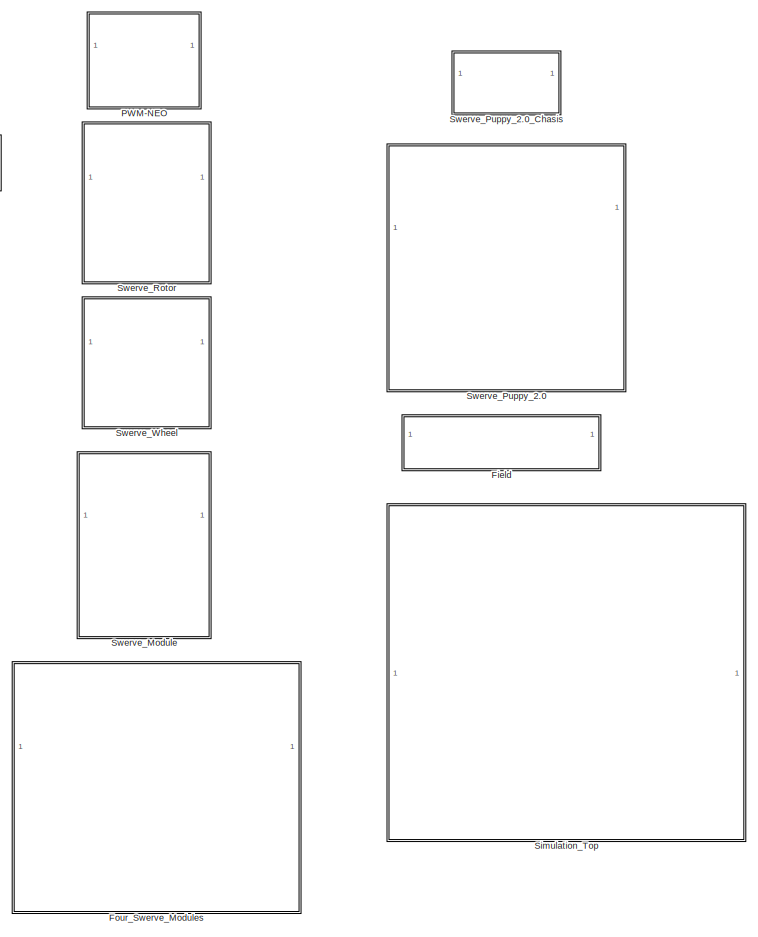
[diagram: root canvas - part 1/2, right side, full height]
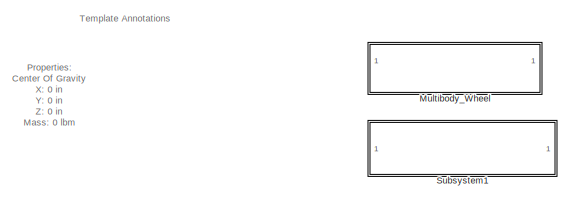
[diagram: root canvas - part 2/2, top left region]
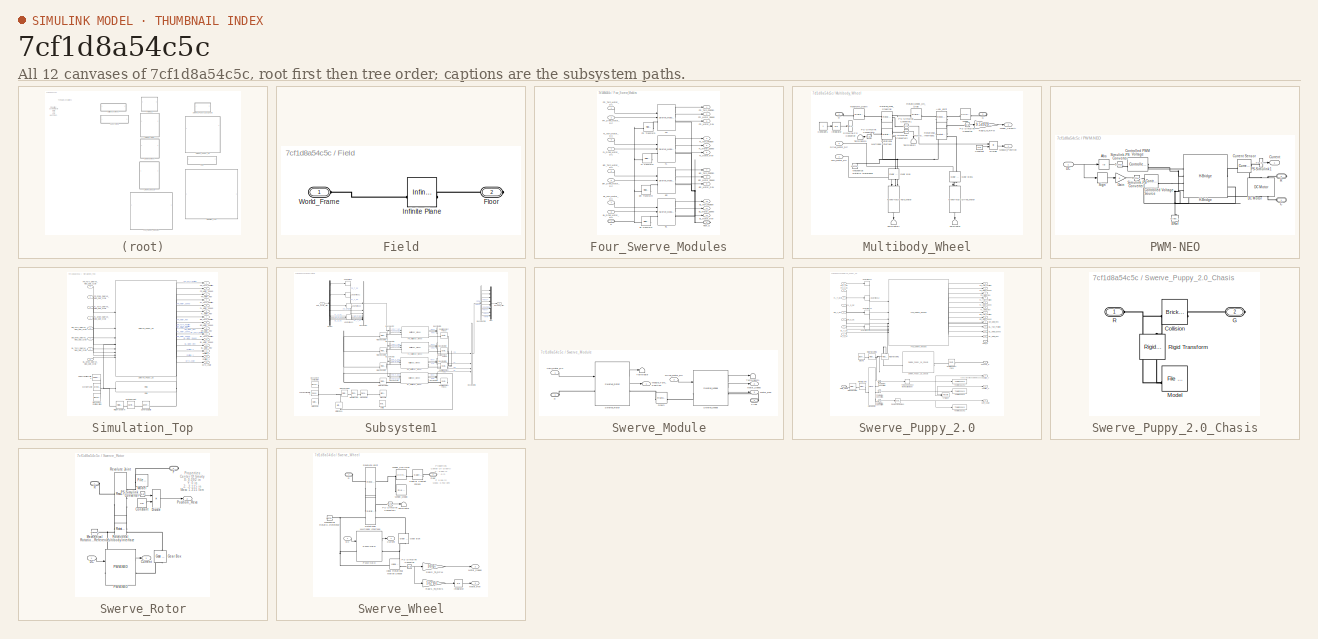
[diagram: thumbnail index - all 12 canvases of the model, root first then tree order]
MODEL slx_7cf1d8a54c5c
KIND library
CONFIG AbsTol = auto
CONFIG EnableMultiTasking = off
CONFIG FixedStep = auto
CONFIG MaxStep = auto
CONFIG MinStep = auto
CONFIG RelTol = 1e-3
CONFIG SampleTimeConstraint = Unconstrained
CONFIG SolverName = VariableStepAuto
CONFIG StartTime = 0.0
CONFIG StopTime = 10.0
BLOCK [SubSystem] Field
BLOCK [PMIOPort] Field/Floor
  Port = 2
  Side = Right
BLOCK [Reference] Field/Infinite Plane  REF=sm_lib/Curves and Surfaces/Infinite Plane
  SourceBlock = sm_lib/Curves and Surfaces/Infinite Plane
  SourceType = Infinite Plane
BLOCK [PMIOPort] Field/World_Frame
  Side = Left
BLOCK [SubSystem] Four_Swerve_Modules
BLOCK [Reference] Four_Swerve_Modules/BL  REF=$bdroot/Swerve_Module
  SourceBlock = $bdroot/Swerve_Module
BLOCK [Reference] Four_Swerve_Modules/BL Transform  REF=sm_lib/Frames and
Transforms/Rigid
Transform
  SourceBlock = sm_lib/Frames and\nTransforms/Rigid\nTransform
  SourceType = Rigid\nTransform
BLOCK [Inport] Four_Swerve_Modules/BL_Drive_Motor_DC
  Port = 8
BLOCK [Outport] Four_Swerve_Modules/BL_Motor_Rev
  Port = 12
  Unit = rev
BLOCK [Outport] Four_Swerve_Modules/BL_Motor_Speed
  Port = 11
BLOCK [Inport] Four_Swerve_Modules/BL_Turn_Motor_DC
  Port = 7
BLOCK [Outport] Four_Swerve_Modules/BL_Turn_Position
  Port = 10
BLOCK [Reference] Four_Swerve_Modules/BR  REF=$bdroot/Swerve_Module
  SourceBlock = $bdroot/Swerve_Module
BLOCK [Reference] Four_Swerve_Modules/BR Transform  REF=sm_lib/Frames and
Transforms/Rigid
Transform
  SourceBlock = sm_lib/Frames and\nTransforms/Rigid\nTransform
  SourceType = Rigid\nTransform
BLOCK [Inport] Four_Swerve_Modules/BR_Drive_Motor_DC
  Port = 6
BLOCK [Outport] Four_Swerve_Modules/BR_Motor_Rev
  Port = 9
  Unit = rev
BLOCK [Outport] Four_Swerve_Modules/BR_Motor_Speed
  Port = 8
BLOCK [Inport] Four_Swerve_Modules/BR_Turn_Motor_DC
  Port = 5
BLOCK [Outport] Four_Swerve_Modules/BR_Turn_Position
  Port = 7
BLOCK [Reference] Four_Swerve_Modules/FL  REF=$bdroot/Swerve_Module
  SourceBlock = $bdroot/Swerve_Module
BLOCK [Reference] Four_Swerve_Modules/FL Transform  REF=sm_lib/Frames and
Transforms/Rigid
Transform
  SourceBlock = sm_lib/Frames and\nTransforms/Rigid\nTransform
  SourceType = Rigid\nTransform
BLOCK [Inport] Four_Swerve_Modules/FL_Drive_Motor_DC
  Port = 4
BLOCK [Outport] Four_Swerve_Modules/FL_Motor_Rev
  Port = 6
  Unit = rev
BLOCK [Outport] Four_Swerve_Modules/FL_Motor_Speed
  Port = 5
BLOCK [Inport] Four_Swerve_Modules/FL_Turn_Motor_DC
  Port = 3
BLOCK [Outport] Four_Swerve_Modules/FL_Turn_Position
  Port = 4
BLOCK [Reference] Four_Swerve_Modules/FR  REF=$bdroot/Swerve_Module
  SourceBlock = $bdroot/Swerve_Module
BLOCK [Reference] Four_Swerve_Modules/FR Transform  REF=sm_lib/Frames and
Transforms/Rigid
Transform
  SourceBlock = sm_lib/Frames and\nTransforms/Rigid\nTransform
  SourceType = Rigid\nTransform
BLOCK [Inport] Four_Swerve_Modules/FR_Drive_Motor_DC
  Port = 2
BLOCK [Outport] Four_Swerve_Modules/FR_Motor_Rev
  Port = 3
  Unit = rev
BLOCK [Outport] Four_Swerve_Modules/FR_Motor_Speed
  Port = 2
BLOCK [Inport] Four_Swerve_Modules/FR_Turn_Motor_DC
BLOCK [Outport] Four_Swerve_Modules/FR_Turn_Position
BLOCK [PMIOPort] Four_Swerve_Modules/Floor_G
  Port = 2
  Side = Right
BLOCK [PMIOPort] Four_Swerve_Modules/R
  Side = Left
BLOCK [SubSystem] Multibody_Wheel
BLOCK [Reference] Multibody_Wheel/Axel_Joint  REF=sm_lib/Joints/Revolute Joint
  NameLocation = top
  SourceBlock = sm_lib/Joints/Revolute Joint
  SourceType = Revolute Joint
BLOCK [Constant] Multibody_Wheel/Constant
  Value = 2*pi
BLOCK [Constant] Multibody_Wheel/Constant1
BLOCK [Product] Multibody_Wheel/Divide
  Inputs = */
BLOCK [Reference] Multibody_Wheel/Drive_Motor  REF=$bdroot/PWM-NEO
  NameLocation = left
  SourceBlock = $bdroot/PWM-NEO
BLOCK [Inport] Multibody_Wheel/Drive_Motor_DC
  Port = 2
BLOCK [PMIOPort] Multibody_Wheel/G
  Port = 2
  Side = Right
BLOCK [Reference] Multibody_Wheel/Gear Box  REF=fl_lib/Mechanical/Mechanisms/Gear Box
  NameLocation = right
  SourceBlock = fl_lib/Mechanical/Mechanisms/Gear Box
  SourceType = Gear Box
BLOCK [Reference] Multibody_Wheel/Gear Box1  REF=fl_lib/Mechanical/Mechanisms/Gear Box
  NameLocation = right
  SourceBlock = fl_lib/Mechanical/Mechanisms/Gear Box
  SourceType = Gear Box
BLOCK [Integrator] Multibody_Wheel/Integrator
BLOCK [Reference] Multibody_Wheel/Mechanical Rotational Reference  REF=fl_lib/Mechanical/Rotational Elements/Mechanical
Rotational Reference
  NameLocation = right
  SourceBlock = fl_lib/Mechanical/Rotational Elements/Mechanical\nRotational Reference
  SourceType = Mechanical\nRotational Reference
BLOCK [Outport] Multibody_Wheel/Module_Position
BLOCK [Reference] Multibody_Wheel/PS-Simulink Converter  REF=nesl_utility/PS-Simulink
Converter
  SourceBlock = nesl_utility/PS-Simulink\nConverter
  SourceType = PS-Simulink\nConverter
BLOCK [Reference] Multibody_Wheel/PS-Simulink Converter1  REF=nesl_utility/PS-Simulink
Converter
  SourceBlock = nesl_utility/PS-Simulink\nConverter
  SourceType = PS-Simulink\nConverter
BLOCK [Reference] Multibody_Wheel/PS-Simulink Converter2  REF=nesl_utility/PS-Simulink
Converter
  SourceBlock = nesl_utility/PS-Simulink\nConverter
  SourceType = PS-Simulink\nConverter
BLOCK [Reference] Multibody_Wheel/PS-Simulink Converter3  REF=nesl_utility/PS-Simulink
Converter
  NameLocation = top
  SourceBlock = nesl_utility/PS-Simulink\nConverter
  SourceType = PS-Simulink\nConverter
BLOCK [PMIOPort] Multibody_Wheel/R
  Side = Left
BLOCK [Gain] Multibody_Wheel/Rad//s_to_RPM
  Gain = 9.5492968
BLOCK [Reference] Multibody_Wheel/Rotate_Wheel_On_Side  REF=sm_lib/Frames and
Transforms/Rigid
Transform
  NameLocation = top
  SourceBlock = sm_lib/Frames and\nTransforms/Rigid\nTransform
  SourceType = Rigid\nTransform
BLOCK [Reference] Multibody_Wheel/Rotational Multibody Interface  REF=fl_lib/Mechanical/Multibody Interfaces/Rotational Multibody
Interface
  SourceBlock = fl_lib/Mechanical/Multibody Interfaces/Rotational Multibody\nInterface
  SourceType = Rotational Multibody\nInterface
BLOCK [Reference] Multibody_Wheel/Rotational Multibody Interface1  REF=fl_lib/Mechanical/Multibody Interfaces/Rotational Multibody
Interface
  SourceBlock = fl_lib/Mechanical/Multibody Interfaces/Rotational Multibody\nInterface
  SourceType = Rotational Multibody\nInterface
BLOCK [Reference] Multibody_Wheel/Simulink-PS Converter  REF=nesl_utility/Simulink-PS
Converter
  SourceBlock = nesl_utility/Simulink-PS\nConverter
  SourceType = Simulink-PS\nConverter
BLOCK [Reference] Multibody_Wheel/Swerve_Mod_Steering  REF=sm_lib/Joints/Revolute Joint
  NameLocation = top
  SourceBlock = sm_lib/Joints/Revolute Joint
  SourceType = Revolute Joint
BLOCK [Terminator] Multibody_Wheel/Terminator
  NameLocation = left
BLOCK [Terminator] Multibody_Wheel/Terminator1
  NameLocation = left
BLOCK [Terminator] Multibody_Wheel/Terminator2
  NameLocation = left
BLOCK [Terminator] Multibody_Wheel/Terminator3
  NameLocation = top
BLOCK [Reference] Multibody_Wheel/Transform_Down  REF=sm_lib/Frames and
Transforms/Rigid
Transform
  SourceBlock = sm_lib/Frames and\nTransforms/Rigid\nTransform
  SourceType = Rigid\nTransform
BLOCK [Reference] Multibody_Wheel/Turn_Motor  REF=$bdroot/PWM-NEO
  NameLocation = left
  SourceBlock = $bdroot/PWM-NEO
BLOCK [Inport] Multibody_Wheel/Turn_Motor_DC
BLOCK [Reference] Multibody_Wheel/Wheel  REF=sm_lib/Body Elements/Cylindrical Solid
  NameLocation = top
  SourceBlock = sm_lib/Body Elements/Cylindrical Solid
  SourceType = Cylindrical Solid
BLOCK [Outport] Multibody_Wheel/Wheel_Velocity
  Port = 2
BLOCK [SubSystem] PWM-NEO
BLOCK [Abs] PWM-NEO/Abs
  SaturateOnIntegerOverflow = off
BLOCK [PMIOPort] PWM-NEO/C
  Side = Left
BLOCK [Reference] PWM-NEO/Controlled PWM Voltage  REF=ee_lib/Integrated Circuits/Controlled PWM
Voltage
  NameLocation = top
  SourceBlock = ee_lib/Integrated Circuits/Controlled PWM\nVoltage
  SourceType = Controlled PWM\nVoltage
BLOCK [Reference] PWM-NEO/Controlled Voltage Source  REF=fl_lib/Electrical/Electrical Sources/Controlled Voltage
Source
  SourceBlock = fl_lib/Electrical/Electrical Sources/Controlled Voltage\nSource
  SourceType = Controlled Voltage\nSource
BLOCK [Outport] PWM-NEO/Current
BLOCK [Reference] PWM-NEO/Current Sensor  REF=fl_lib/Electrical/Electrical Sensors/Current Sensor
  SourceBlock = fl_lib/Electrical/Electrical Sensors/Current Sensor
  SourceType = Current Sensor
BLOCK [Inport] PWM-NEO/DC
BLOCK [Reference] PWM-NEO/DC Motor  REF=ee_lib/Electromechanical/Brushed Motors/DC Motor
  NameLocation = right
  SourceBlock = ee_lib/Electromechanical/Brushed Motors/DC Motor
  SourceType = DC Motor
BLOCK [Reference] PWM-NEO/ERef  REF=fl_lib/Electrical/Electrical Elements/Electrical Reference
  NameLocation = left
  SourceBlock = fl_lib/Electrical/Electrical Elements/Electrical Reference
  SourceType = Electrical Reference
BLOCK [Gain] PWM-NEO/Gain
  Gain = 5
BLOCK [Reference] PWM-NEO/H-Bridge  REF=ee_lib/Semiconductors &
Converters/Converters/H-Bridge
  NameLocation = top
  SourceBlock = ee_lib/Semiconductors &\nConverters/Converters/H-Bridge
  SourceType = H-Bridge
BLOCK [Reference] PWM-NEO/PS-Simulink1  REF=nesl_utility/PS-Simulink
Converter
  SourceBlock = nesl_utility/PS-Simulink\nConverter
  SourceType = PS-Simulink\nConverter
BLOCK [PMIOPort] PWM-NEO/R
  Port = 2
  Side = Right
BLOCK [Signum] PWM-NEO/Sign
BLOCK [Reference] PWM-NEO/Simulink-PS Converter  REF=nesl_utility/Simulink-PS
Converter
  SourceBlock = nesl_utility/Simulink-PS\nConverter
  SourceType = Simulink-PS\nConverter
BLOCK [Reference] PWM-NEO/Simulink-PS Converter1  REF=nesl_utility/Simulink-PS
Converter
  SourceBlock = nesl_utility/Simulink-PS\nConverter
  SourceType = Simulink-PS\nConverter
BLOCK [SubSystem] Simulation_Top
BLOCK [Inport] Simulation_Top/BL_Drive_Swerve_Mod_Duty_Cycle
  Port = 5
BLOCK [Outport] Simulation_Top/BL_Motor_Rev
  Port = 12
BLOCK [Outport] Simulation_Top/BL_Motor_Speed
  Port = 11
BLOCK [Outport] Simulation_Top/BL_Turn_Position
  Port = 10
BLOCK [Inport] Simulation_Top/BL_Turn_Swerve_Mod_Duty_Cycle
  Port = 6
BLOCK [Inport] Simulation_Top/BR_Drive_Swerve_Mod_Duty_Cycle
  Port = 7
BLOCK [Outport] Simulation_Top/BR_Motor_Rev
  Port = 9
BLOCK [Outport] Simulation_Top/BR_Motor_Speed
  Port = 8
BLOCK [Outport] Simulation_Top/BR_Turn_Position
  Port = 7
BLOCK [Inport] Simulation_Top/BR_Turn_Swerve_Mod_Duty_Cycle
  Port = 8
BLOCK [Reference] Simulation_Top/Cartesian Joint  REF=sm_lib/Joints/Cartesian
Joint
  SourceBlock = sm_lib/Joints/Cartesian\nJoint
  SourceType = Cartesian\nJoint
BLOCK [Inport] Simulation_Top/FL_Drive_Swerve_Mod_Duty_Cycle
BLOCK [Outport] Simulation_Top/FL_Motor_Rev
  Port = 6
BLOCK [Outport] Simulation_Top/FL_Motor_Speed
  Port = 5
BLOCK [Outport] Simulation_Top/FL_Turn_Position
  Port = 4
BLOCK [Inport] Simulation_Top/FL_Turn_Swerve_Mod_Duty_Cycle
  Port = 2
BLOCK [Inport] Simulation_Top/FR_Drive_Swerve_Mod_Duty_Cycle
  Port = 3
BLOCK [Outport] Simulation_Top/FR_Motor_Rev
  Port = 3
BLOCK [Outport] Simulation_Top/FR_Motor_Speed
  Port = 2
BLOCK [Outport] Simulation_Top/FR_Turn_Position
BLOCK [Inport] Simulation_Top/FR_Turn_Swerve_Mod_Duty_Cycle
  Port = 4
BLOCK [Reference] Simulation_Top/Field  REF=$bdroot/Field
  SourceBlock = $bdroot/Field
  SourceType = SubSystem
BLOCK [Outport] Simulation_Top/Gyro_Angle
  Port = 15
BLOCK [Reference] Simulation_Top/Mechanism Configuration  REF=sm_lib/Utilities/Mechanism
Configuration
  SourceBlock = sm_lib/Utilities/Mechanism\nConfiguration
  SourceType = Mechanism\nConfiguration
BLOCK [Outport] Simulation_Top/Position_X
  Port = 13
BLOCK [Outport] Simulation_Top/Position_Y
  Port = 14
BLOCK [Reference] Simulation_Top/Rigid Transform  REF=sm_lib/Frames and
Transforms/Rigid
Transform
  SourceBlock = sm_lib/Frames and\nTransforms/Rigid\nTransform
  SourceType = Rigid\nTransform
BLOCK [Reference] Simulation_Top/Solver Configuration  REF=nesl_utility/Solver
Configuration
  SourceBlock = nesl_utility/Solver\nConfiguration
  SourceType = Solver\nConfiguration
BLOCK [Reference] Simulation_Top/Spherical Solid  REF=sm_lib/Body Elements/Spherical Solid
  NameLocation = top
  SourceBlock = sm_lib/Body Elements/Spherical Solid
  SourceType = Spherical Solid
BLOCK [Reference] Simulation_Top/Swerve_Puppy_2.0  REF=$bdroot/Swerve_Puppy_2.0
  SourceBlock = $bdroot/Swerve_Puppy_2.0
BLOCK [Reference] Simulation_Top/World Frame  REF=sm_lib/Frames and
Transforms/World Frame
  SourceBlock = sm_lib/Frames and\nTransforms/World Frame
  SourceType = World Frame
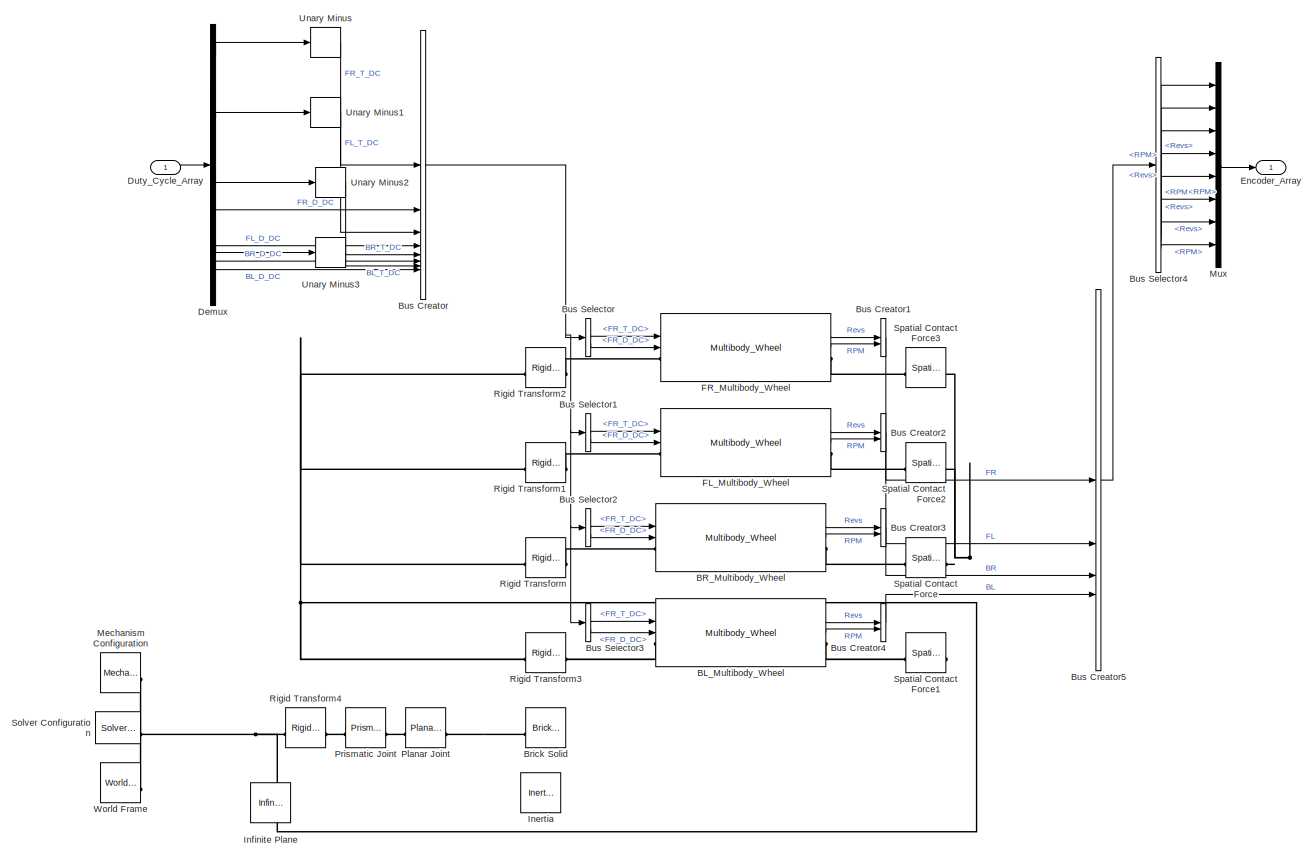
[diagram: Subsystem1 - part 1/1, most of the canvas]
BLOCK [SubSystem] Subsystem1
BLOCK [Reference] Subsystem1/BL_Multibody_Wheel  REF=$bdroot/Multibody_Wheel
  SourceBlock = $bdroot/Multibody_Wheel
  SourceType = SubSystem
BLOCK [Reference] Subsystem1/BR_Multibody_Wheel  REF=$bdroot/Multibody_Wheel
  SourceBlock = $bdroot/Multibody_Wheel
  SourceType = SubSystem
BLOCK [Reference] Subsystem1/Brick Solid  REF=sm_lib/Body Elements/Brick Solid
  SourceBlock = sm_lib/Body Elements/Brick Solid
  SourceType = Brick Solid
BLOCK [BusCreator] Subsystem1/Bus Creator
  DisplayOption = bar
  InheritFromInputs = on
  Inputs = 8
BLOCK [BusCreator] Subsystem1/Bus Creator1
  DisplayOption = bar
  InheritFromInputs = on
  Inputs = 2
BLOCK [BusCreator] Subsystem1/Bus Creator2
  DisplayOption = bar
  InheritFromInputs = on
  Inputs = 2
BLOCK [BusCreator] Subsystem1/Bus Creator3
  DisplayOption = bar
  InheritFromInputs = on
  Inputs = 2
BLOCK [BusCreator] Subsystem1/Bus Creator4
  DisplayOption = bar
  InheritFromInputs = on
  Inputs = 2
BLOCK [BusCreator] Subsystem1/Bus Creator5
  DisplayOption = bar
  InheritFromInputs = on
  Inputs = 4
BLOCK [BusSelector] Subsystem1/Bus Selector
  OutputSignals = FR_T_DC,FR_D_DC
BLOCK [BusSelector] Subsystem1/Bus Selector1
  OutputSignals = FR_T_DC,FR_D_DC
BLOCK [BusSelector] Subsystem1/Bus Selector2
  OutputSignals = FR_T_DC,FR_D_DC
BLOCK [BusSelector] Subsystem1/Bus Selector3
  OutputSignals = FR_T_DC,FR_D_DC
BLOCK [BusSelector] Subsystem1/Bus Selector4
  OutputSignals = FR.Revs,FR.RPM,FL.Revs,FL.RPM,BR.Revs,BR.RPM,BL.Revs,BL.RPM
BLOCK [Demux] Subsystem1/Demux
  Outputs = 8
BLOCK [Inport] Subsystem1/Duty_Cycle_Array
BLOCK [Outport] Subsystem1/Encoder_Array
BLOCK [Reference] Subsystem1/FL_Multibody_Wheel  REF=$bdroot/Multibody_Wheel
  SourceBlock = $bdroot/Multibody_Wheel
  SourceType = SubSystem
BLOCK [Reference] Subsystem1/FR_Multibody_Wheel  REF=$bdroot/Multibody_Wheel
  SourceBlock = $bdroot/Multibody_Wheel
  SourceType = SubSystem
BLOCK [Reference] Subsystem1/Inertia  REF=sm_lib/Body Elements/Inertia
  SourceBlock = sm_lib/Body Elements/Inertia
  SourceType = Inertia
BLOCK [Reference] Subsystem1/Infinite Plane  REF=sm_lib/Curves and Surfaces/Infinite Plane
  NameLocation = left
  SourceBlock = sm_lib/Curves and Surfaces/Infinite Plane
  SourceType = Infinite Plane
BLOCK [Reference] Subsystem1/Mechanism Configuration  REF=sm_lib/Utilities/Mechanism
Configuration
  SourceBlock = sm_lib/Utilities/Mechanism\nConfiguration
  SourceType = Mechanism\nConfiguration
BLOCK [Mux] Subsystem1/Mux
  DisplayOption = bar
  Inputs = 8
BLOCK [Reference] Subsystem1/Planar Joint  REF=sm_lib/Joints/Planar Joint
  SourceBlock = sm_lib/Joints/Planar Joint
  SourceType = Planar Joint
BLOCK [Reference] Subsystem1/Prismatic Joint  REF=sm_lib/Joints/Prismatic
Joint
  SourceBlock = sm_lib/Joints/Prismatic\nJoint
  SourceType = Prismatic\nJoint
BLOCK [Reference] Subsystem1/Rigid Transform  REF=sm_lib/Frames and
Transforms/Rigid
Transform
  SourceBlock = sm_lib/Frames and\nTransforms/Rigid\nTransform
  SourceType = Rigid\nTransform
BLOCK [Reference] Subsystem1/Rigid Transform1  REF=sm_lib/Frames and
Transforms/Rigid
Transform
  SourceBlock = sm_lib/Frames and\nTransforms/Rigid\nTransform
  SourceType = Rigid\nTransform
BLOCK [Reference] Subsystem1/Rigid Transform2  REF=sm_lib/Frames and
Transforms/Rigid
Transform
  SourceBlock = sm_lib/Frames and\nTransforms/Rigid\nTransform
  SourceType = Rigid\nTransform
BLOCK [Reference] Subsystem1/Rigid Transform3  REF=sm_lib/Frames and
Transforms/Rigid
Transform
  SourceBlock = sm_lib/Frames and\nTransforms/Rigid\nTransform
  SourceType = Rigid\nTransform
BLOCK [Reference] Subsystem1/Rigid Transform4  REF=sm_lib/Frames and
Transforms/Rigid
Transform
  SourceBlock = sm_lib/Frames and\nTransforms/Rigid\nTransform
  SourceType = Rigid\nTransform
BLOCK [Reference] Subsystem1/Solver Configuration  REF=nesl_utility/Solver
Configuration
  SourceBlock = nesl_utility/Solver\nConfiguration
  SourceType = Solver\nConfiguration
BLOCK [Reference] Subsystem1/Spatial Contact Force  REF=sm_lib/Forces and
Torques/Spatial
Contact Force
  SourceBlock = sm_lib/Forces and\nTorques/Spatial\nContact Force
  SourceType = Spatial\nContact Force
BLOCK [Reference] Subsystem1/Spatial Contact Force1  REF=sm_lib/Forces and
Torques/Spatial
Contact Force
  SourceBlock = sm_lib/Forces and\nTorques/Spatial\nContact Force
  SourceType = Spatial\nContact Force
BLOCK [Reference] Subsystem1/Spatial Contact Force2  REF=sm_lib/Forces and
Torques/Spatial
Contact Force
  SourceBlock = sm_lib/Forces and\nTorques/Spatial\nContact Force
  SourceType = Spatial\nContact Force
BLOCK [Reference] Subsystem1/Spatial Contact Force3  REF=sm_lib/Forces and
Torques/Spatial
Contact Force
  SourceBlock = sm_lib/Forces and\nTorques/Spatial\nContact Force
  SourceType = Spatial\nContact Force
BLOCK [UnaryMinus] Subsystem1/Unary Minus
BLOCK [UnaryMinus] Subsystem1/Unary Minus1
BLOCK [UnaryMinus] Subsystem1/Unary Minus2
BLOCK [UnaryMinus] Subsystem1/Unary Minus3
BLOCK [Reference] Subsystem1/World Frame  REF=sm_lib/Frames and
Transforms/World Frame
  SourceBlock = sm_lib/Frames and\nTransforms/World Frame
  SourceType = World Frame
BLOCK [SubSystem] Swerve_Module
BLOCK [Reference] Swerve_Module/Down  REF=sm_lib/Frames and
Transforms/Rigid
Transform
  SourceBlock = sm_lib/Frames and\nTransforms/Rigid\nTransform
  SourceType = Rigid\nTransform
BLOCK [Inport] Swerve_Module/Drive_Motor_DC
  Port = 2
BLOCK [PMIOPort] Swerve_Module/Floor
  Port = 2
  Side = Right
BLOCK [Outport] Swerve_Module/Module_Turn_Position
BLOCK [Outport] Swerve_Module/Motor_Rev
  Port = 3
BLOCK [Outport] Swerve_Module/Motor_Speed
  Port = 2
BLOCK [PMIOPort] Swerve_Module/R
  Side = Left
BLOCK [Reference] Swerve_Module/Swerve_Rotor  REF=$bdroot/Swerve_Rotor
  SourceBlock = $bdroot/Swerve_Rotor
BLOCK [Reference] Swerve_Module/Swerve_Wheel  REF=$bdroot/Swerve_Wheel
  SourceBlock = $bdroot/Swerve_Wheel
BLOCK [Terminator] Swerve_Module/Terminator
BLOCK [Terminator] Swerve_Module/Terminator1
BLOCK [Inport] Swerve_Module/Turn_Motor_DC
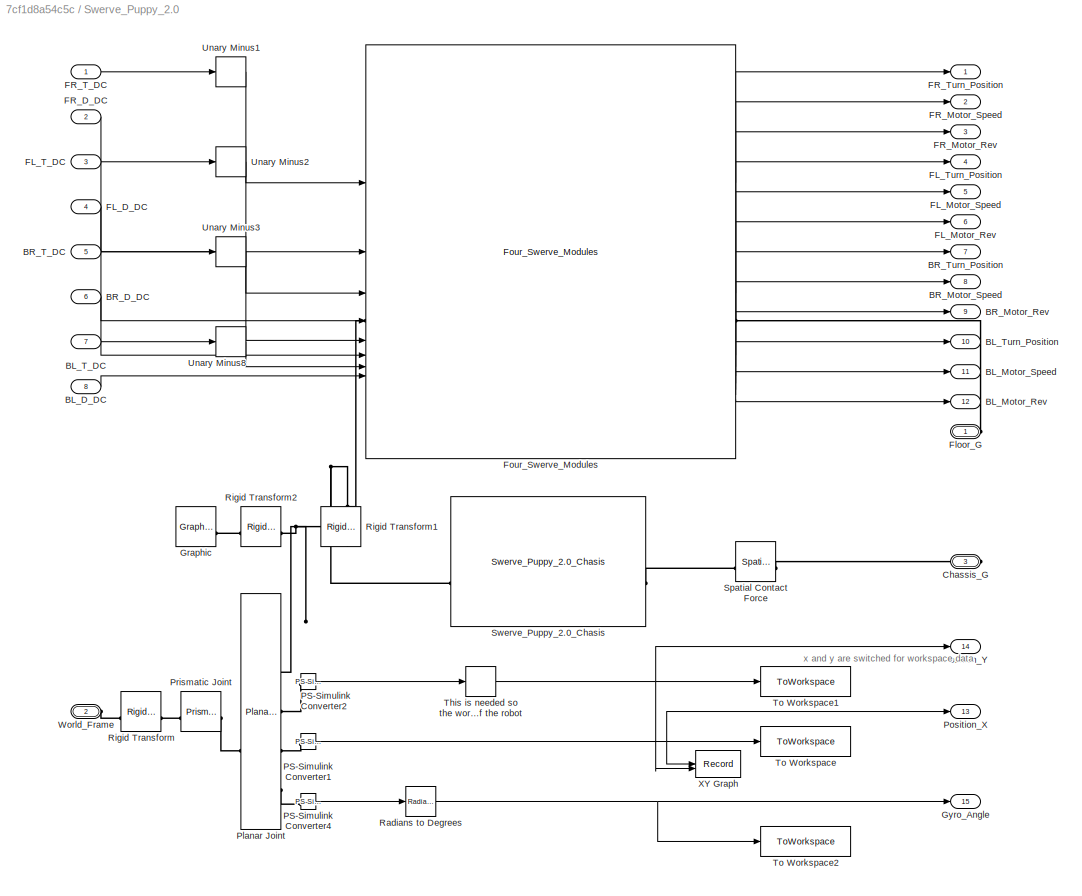
BLOCK [SubSystem] Swerve_Puppy_2.0
BLOCK [Inport] Swerve_Puppy_2.0/BL_D_DC
  OutDataTypeStr = double
  Port = 8
  Unit = 1
BLOCK [Outport] Swerve_Puppy_2.0/BL_Motor_Rev
  OutDataTypeStr = double
  Port = 12
  Unit = rev
BLOCK [Outport] Swerve_Puppy_2.0/BL_Motor_Speed
  OutDataTypeStr = double
  Port = 11
  Unit = rpm
BLOCK [Inport] Swerve_Puppy_2.0/BL_T_DC
  OutDataTypeStr = double
  Port = 7
  Unit = 1
BLOCK [Outport] Swerve_Puppy_2.0/BL_Turn_Position
  OutDataTypeStr = double
  Port = 10
  Unit = rev
BLOCK [Inport] Swerve_Puppy_2.0/BR_D_DC
  OutDataTypeStr = double
  Port = 6
  Unit = 1
BLOCK [Outport] Swerve_Puppy_2.0/BR_Motor_Rev
  OutDataTypeStr = double
  Port = 9
  Unit = rev
BLOCK [Outport] Swerve_Puppy_2.0/BR_Motor_Speed
  OutDataTypeStr = double
  Port = 8
  Unit = rpm
BLOCK [Inport] Swerve_Puppy_2.0/BR_T_DC
  OutDataTypeStr = double
  Port = 5
  Unit = 1
BLOCK [Outport] Swerve_Puppy_2.0/BR_Turn_Position
  OutDataTypeStr = double
  Port = 7
  Unit = rev
BLOCK [PMIOPort] Swerve_Puppy_2.0/Chassis_G
  ConnectionType = Connection: simmechanics.connections.geometry
  Port = 3
  Side = Right
BLOCK [Inport] Swerve_Puppy_2.0/FL_D_DC
  OutDataTypeStr = double
  Port = 4
  Unit = 1
BLOCK [Outport] Swerve_Puppy_2.0/FL_Motor_Rev
  OutDataTypeStr = double
  Port = 6
  Unit = rev
BLOCK [Outport] Swerve_Puppy_2.0/FL_Motor_Speed
  OutDataTypeStr = double
  Port = 5
  Unit = rpm
BLOCK [Inport] Swerve_Puppy_2.0/FL_T_DC
  OutDataTypeStr = double
  Port = 3
  Unit = 1
BLOCK [Outport] Swerve_Puppy_2.0/FL_Turn_Position
  OutDataTypeStr = double
  Port = 4
  Unit = rev
BLOCK [Inport] Swerve_Puppy_2.0/FR_D_DC
  OutDataTypeStr = double
  Port = 2
  Unit = 1
BLOCK [Outport] Swerve_Puppy_2.0/FR_Motor_Rev
  OutDataTypeStr = double
  Port = 3
  Unit = rev
BLOCK [Outport] Swerve_Puppy_2.0/FR_Motor_Speed
  OutDataTypeStr = double
  Port = 2
  Unit = rpm
BLOCK [Inport] Swerve_Puppy_2.0/FR_T_DC
  OutDataTypeStr = double
  Unit = 1
BLOCK [Outport] Swerve_Puppy_2.0/FR_Turn_Position
  OutDataTypeStr = double
  Unit = rev
BLOCK [PMIOPort] Swerve_Puppy_2.0/Floor_G
  ConnectionType = Connection: simmechanics.connections.geometry
  Side = Right
BLOCK [Reference] Swerve_Puppy_2.0/Four_Swerve_Modules  REF=$bdroot/Four_Swerve_Modules
  SourceBlock = $bdroot/Four_Swerve_Modules
BLOCK [Reference] Swerve_Puppy_2.0/Graphic  REF=sm_lib/Body Elements/Graphic
  SourceBlock = sm_lib/Body Elements/Graphic
  SourceType = Graphic
BLOCK [Outport] Swerve_Puppy_2.0/Gyro_Angle
  OutDataTypeStr = double
  Port = 15
  Unit = deg
BLOCK [Reference] Swerve_Puppy_2.0/PS-Simulink Converter1  REF=nesl_utility/PS-Simulink
Converter
  SourceBlock = nesl_utility/PS-Simulink\nConverter
  SourceType = PS-Simulink\nConverter
BLOCK [Reference] Swerve_Puppy_2.0/PS-Simulink Converter2  REF=nesl_utility/PS-Simulink
Converter
  SourceBlock = nesl_utility/PS-Simulink\nConverter
  SourceType = PS-Simulink\nConverter
BLOCK [Reference] Swerve_Puppy_2.0/PS-Simulink Converter4  REF=nesl_utility/PS-Simulink
Converter
  SourceBlock = nesl_utility/PS-Simulink\nConverter
  SourceType = PS-Simulink\nConverter
BLOCK [Reference] Swerve_Puppy_2.0/Planar Joint  REF=sm_lib/Joints/Planar Joint
  SourceBlock = sm_lib/Joints/Planar Joint
  SourceType = Planar Joint
BLOCK [Outport] Swerve_Puppy_2.0/Position_X
  OutDataTypeStr = double
  Port = 13
  Unit = m
BLOCK [Outport] Swerve_Puppy_2.0/Position_Y
  OutDataTypeStr = double
  Port = 14
  Unit = m
BLOCK [Reference] Swerve_Puppy_2.0/Prismatic Joint  REF=sm_lib/Joints/Prismatic
Joint
  SourceBlock = sm_lib/Joints/Prismatic\nJoint
  SourceType = Prismatic\nJoint
BLOCK [Reference] Swerve_Puppy_2.0/Radians to Degrees  REF=simulink_extras/Transformations/Radians
to Degrees
  SourceBlock = simulink_extras/Transformations/Radians\nto Degrees
  SourceType = RadiansToDegrees
BLOCK [Reference] Swerve_Puppy_2.0/Rigid Transform  REF=sm_lib/Frames and
Transforms/Rigid
Transform
  SourceBlock = sm_lib/Frames and\nTransforms/Rigid\nTransform
  SourceType = Rigid\nTransform
BLOCK [Reference] Swerve_Puppy_2.0/Rigid Transform1  REF=sm_lib/Frames and
Transforms/Rigid
Transform
  NameLocation = right
  SourceBlock = sm_lib/Frames and\nTransforms/Rigid\nTransform
  SourceType = Rigid\nTransform
BLOCK [Reference] Swerve_Puppy_2.0/Rigid Transform2  REF=sm_lib/Frames and
Transforms/Rigid
Transform
  NameLocation = top
  SourceBlock = sm_lib/Frames and\nTransforms/Rigid\nTransform
  SourceType = Rigid\nTransform
BLOCK [Reference] Swerve_Puppy_2.0/Spatial Contact Force  REF=sm_lib/Forces and
Torques/Spatial
Contact Force
  SourceBlock = sm_lib/Forces and\nTorques/Spatial\nContact Force
  SourceType = Spatial\nContact Force
BLOCK [Reference] Swerve_Puppy_2.0/Swerve_Puppy_2.0_Chasis  REF=$bdroot/Swerve_Puppy_2.0_Chasis
  SourceBlock = $bdroot/Swerve_Puppy_2.0_Chasis
BLOCK [UnaryMinus] Swerve_Puppy_2.0/This is needed so the workspace data matches the 3D model of the robot
BLOCK [ToWorkspace] Swerve_Puppy_2.0/To Workspace
  FixptAsFi = on
  MaxDataPoints = inf
  SampleTime = -1
  VariableName = Simulation_Px
BLOCK [ToWorkspace] Swerve_Puppy_2.0/To Workspace1
  FixptAsFi = on
  MaxDataPoints = inf
  SampleTime = -1
  VariableName = Simulation_Py
BLOCK [ToWorkspace] Swerve_Puppy_2.0/To Workspace2
  FixptAsFi = on
  MaxDataPoints = inf
  SampleTime = -1
  VariableName = Simulation_Gyro
BLOCK [UnaryMinus] Swerve_Puppy_2.0/Unary Minus1
BLOCK [UnaryMinus] Swerve_Puppy_2.0/Unary Minus2
BLOCK [UnaryMinus] Swerve_Puppy_2.0/Unary Minus3
BLOCK [UnaryMinus] Swerve_Puppy_2.0/Unary Minus8
BLOCK [PMIOPort] Swerve_Puppy_2.0/World_Frame
  ConnectionType = Connection: simmechanics.connections.frame
  Port = 2
  Side = Left
BLOCK [Record] Swerve_Puppy_2.0/XY Graph
  CompatibilityTag = XY
  FileSettingsInternal = {"entries":[{"content":{"excelSettings":{"content":{},"type":"Streamout.ExcelSettings"}},"type":"Streamout.FileSettingStorage","uuid":""}],"packageUris":["http:\/\/schema.mathworks.com\/mf0\/streamout_blocks\/R2020a"],"version":"1.0"}
  Layout = [1 1]
  SignalsInternal = {"entries":[{"content":{},"type":"RecordBlkView.InputSignals","uuid":""}],"packageUris":["http:\/\/schema.mathworks.com\/mf0\/streamout_blocks\/R2020a"],"version":"1.0"}
  VisualizationBindings = {"sparklinesplugin":{"info":[{"bindingParametersList":[],"subplotID":1}]}}
BLOCK [SubSystem] Swerve_Puppy_2.0_Chasis
BLOCK [Reference] Swerve_Puppy_2.0_Chasis/Collision  REF=sm_lib/Body Elements/Brick Solid
  SourceBlock = sm_lib/Body Elements/Brick Solid
  SourceType = Brick Solid
BLOCK [PMIOPort] Swerve_Puppy_2.0_Chasis/G
  Port = 2
  Side = Right
BLOCK [Reference] Swerve_Puppy_2.0_Chasis/Model  REF=sm_lib/Body Elements/File Solid
  SourceBlock = sm_lib/Body Elements/File Solid
  SourceType = File Solid
BLOCK [PMIOPort] Swerve_Puppy_2.0_Chasis/R
  Side = Left
BLOCK [Reference] Swerve_Puppy_2.0_Chasis/Rigid Transform  REF=sm_lib/Frames and
Transforms/Rigid
Transform
  Commented = on
  NameLocation = left
  SourceBlock = sm_lib/Frames and\nTransforms/Rigid\nTransform
  SourceType = Rigid\nTransform
BLOCK [SubSystem] Swerve_Rotor
BLOCK [Constant] Swerve_Rotor/Constant
  Value = 2*pi
BLOCK [Outport] Swerve_Rotor/Current
BLOCK [Inport] Swerve_Rotor/DC
BLOCK [Product] Swerve_Rotor/Divide
  Inputs = */
BLOCK [PMIOPort] Swerve_Rotor/F
  Port = 2
  Side = Right
BLOCK [Reference] Swerve_Rotor/Gear Box  REF=fl_lib/Mechanical/Mechanisms/Gear Box
  NameLocation = right
  SourceBlock = fl_lib/Mechanical/Mechanisms/Gear Box
  SourceType = Gear Box
BLOCK [Reference] Swerve_Rotor/Mechanical Rotational Reference  REF=fl_lib/Mechanical/Rotational Elements/Mechanical
Rotational Reference
  SourceBlock = fl_lib/Mechanical/Rotational Elements/Mechanical\nRotational Reference
  SourceType = Mechanical\nRotational Reference
BLOCK [Reference] Swerve_Rotor/Model  REF=sm_lib/Body Elements/File Solid
  SourceBlock = sm_lib/Body Elements/File Solid
  SourceType = File Solid
BLOCK [Reference] Swerve_Rotor/PS-Simulink Converter  REF=nesl_utility/PS-Simulink
Converter
  SourceBlock = nesl_utility/PS-Simulink\nConverter
  SourceType = PS-Simulink\nConverter
BLOCK [Reference] Swerve_Rotor/PWM-NEO  REF=$bdroot/PWM-NEO
  SourceBlock = $bdroot/PWM-NEO
BLOCK [Outport] Swerve_Rotor/Position_Revs
  Port = 2
BLOCK [PMIOPort] Swerve_Rotor/R
  Side = Left
BLOCK [Reference] Swerve_Rotor/Revolute Joint  REF=sm_lib/Joints/Revolute Joint
  SourceBlock = sm_lib/Joints/Revolute Joint
  SourceType = Revolute Joint
BLOCK [Reference] Swerve_Rotor/Rotational Multibody Interface  REF=fl_lib/Mechanical/Multibody Interfaces/Rotational Multibody
Interface
  SourceBlock = fl_lib/Mechanical/Multibody Interfaces/Rotational Multibody\nInterface
  SourceType = Rotational Multibody\nInterface
BLOCK [SubSystem] Swerve_Wheel
BLOCK [Outport] Swerve_Wheel/Current
BLOCK [Inport] Swerve_Wheel/DC
BLOCK [PMIOPort] Swerve_Wheel/Floor
  Port = 2
  Side = Right
BLOCK [Reference] Swerve_Wheel/Gear Box  REF=fl_lib/Mechanical/Mechanisms/Gear Box
  NameLocation = right
  SourceBlock = fl_lib/Mechanical/Mechanisms/Gear Box
  SourceType = Gear Box
BLOCK [Reference] Swerve_Wheel/Ideal Rotational Motion Sensor  REF=fl_lib/Mechanical/Mechanical Sensors/Ideal Rotational
Motion Sensor
  SourceBlock = fl_lib/Mechanical/Mechanical Sensors/Ideal Rotational\nMotion Sensor
  SourceType = Ideal Rotational\nMotion Sensor
BLOCK [Integrator] Swerve_Wheel/Integrator
BLOCK [Reference] Swerve_Wheel/Mechanical Rotational Reference  REF=fl_lib/Mechanical/Rotational Elements/Mechanical
Rotational Reference
  SourceBlock = fl_lib/Mechanical/Rotational Elements/Mechanical\nRotational Reference
  SourceType = Mechanical\nRotational Reference
BLOCK [Outport] Swerve_Wheel/Motor_Rev
  Port = 3
  Unit = rev
BLOCK [Outport] Swerve_Wheel/Motor_Speed
  Port = 2
BLOCK [Reference] Swerve_Wheel/PS-Simulink Converter  REF=nesl_utility/PS-Simulink
Converter
  SourceBlock = nesl_utility/PS-Simulink\nConverter
  SourceType = PS-Simulink\nConverter
BLOCK [Reference] Swerve_Wheel/PS-Simulink Converter1  REF=nesl_utility/PS-Simulink
Converter
  SourceBlock = nesl_utility/PS-Simulink\nConverter
  SourceType = PS-Simulink\nConverter
BLOCK [Reference] Swerve_Wheel/PWM-NEO  REF=$bdroot/PWM-NEO
  SourceBlock = $bdroot/PWM-NEO
BLOCK [PMIOPort] Swerve_Wheel/R
  Side = Left
BLOCK [Gain] Swerve_Wheel/Rad//S_To_RPM
  Gain = 30/pi
BLOCK [Gain] Swerve_Wheel/Rad//S_To_Rev//S
  Gain = 1/(2*pi)
BLOCK [Reference] Swerve_Wheel/Revolute Joint  REF=sm_lib/Joints/Revolute Joint
  SourceBlock = sm_lib/Joints/Revolute Joint
  SourceType = Revolute Joint
BLOCK [Reference] Swerve_Wheel/Rotational Multibody Interface  REF=fl_lib/Mechanical/Multibody Interfaces/Rotational Multibody
Interface
  SourceBlock = fl_lib/Mechanical/Multibody Interfaces/Rotational Multibody\nInterface
  SourceType = Rotational Multibody\nInterface
BLOCK [Reference] Swerve_Wheel/Spatial Contact Force3  REF=sm_lib/Forces and
Torques/Spatial
Contact Force
  SourceBlock = sm_lib/Forces and\nTorques/Spatial\nContact Force
  SourceType = Spatial\nContact Force
BLOCK [Terminator] Swerve_Wheel/Terminator
BLOCK [Reference] Swerve_Wheel/Wheel_Collision  REF=sm_lib/Body Elements/Cylindrical Solid
  SourceBlock = sm_lib/Body Elements/Cylindrical Solid
  SourceType = Cylindrical Solid
BLOCK [Reference] Swerve_Wheel/Wheel_Model  REF=sm_lib/Body Elements/File Solid
  SourceBlock = sm_lib/Body Elements/File Solid
  SourceType = File Solid
ANNOTATION (root): Properties: Center Of Gravity X: 0 in Y: 0 in Z: 0 in Mass: 0 lbm Inertial Properties: Ixx: 0 lbm in^2 Iyy: 0 lbm in^2 Izz: 0 lbm in^2 Iyz: 0 lbm in^2 Ixz: 0 lbm in^2 Ixy: 0 lbm in^2 Cut & Paste: 0 [0 0 0] [0 0 0] [0 0 0]
ANNOTATION (root): Template Annotations
ANNOTATION Swerve_Puppy_2.0: x and y are switched for workspace data
ANNOTATION Swerve_Rotor: Properties: Center Of Gravity X: 0.092 in Y: 0 in Z: -2.115 in Mass: 1.215 lbm Inertial Properties: Ixx: 2.261 lbm in^2 Iyy: 2.852 lbm in^2 Izz: 1.615 lbm in^2 Iyz: 0 lbm in^2 Ixz: -0.097 lbm in^2 Ixy: 0 lbm in^2 Cut & Paste: 1.215 [0.092 0 -2.115] [2.261 2.852 1.615] [0 -0.097 0]
ANNOTATION Swerve_Wheel: Properties: Center Of Gravity X: 0.032 in Y: 0 in Z: 0.191 in Mass: 0.702 lbm Inertial Properties: Ixx: 0.782 lbm in^2 Iyy: 0.814 lbm in^2 Izz: 1.314 lbm in^2 Iyz: 0 lbm in^2 Ixz: 0.004 lbm in^2 Ixy: 0 lbm in^2 Cut & Paste: 0.702 [0.032 0 0.191] [0.782 0.814 1.314] [0 0.004 0]
LINE Four_Swerve_Modules/BL:1 -> Four_Swerve_Modules/BL_Turn_Position:1
LINE Four_Swerve_Modules/BL:2 -> Four_Swerve_Modules/BL_Motor_Speed:1
LINE Four_Swerve_Modules/BL:3 -> Four_Swerve_Modules/BL_Motor_Rev:1
LINE Four_Swerve_Modules/BL_Drive_Motor_DC:1 -> Four_Swerve_Modules/BL:2
LINE Four_Swerve_Modules/BL_Turn_Motor_DC:1 -> Four_Swerve_Modules/BL:1
LINE Four_Swerve_Modules/BR:1 -> Four_Swerve_Modules/BR_Turn_Position:1
LINE Four_Swerve_Modules/BR:2 -> Four_Swerve_Modules/BR_Motor_Speed:1
LINE Four_Swerve_Modules/BR:3 -> Four_Swerve_Modules/BR_Motor_Rev:1
LINE Four_Swerve_Modules/BR_Drive_Motor_DC:1 -> Four_Swerve_Modules/BR:2
LINE Four_Swerve_Modules/BR_Turn_Motor_DC:1 -> Four_Swerve_Modules/BR:1
LINE Four_Swerve_Modules/FL:1 -> Four_Swerve_Modules/FL_Turn_Position:1
LINE Four_Swerve_Modules/FL:2 -> Four_Swerve_Modules/FL_Motor_Speed:1
LINE Four_Swerve_Modules/FL:3 -> Four_Swerve_Modules/FL_Motor_Rev:1
LINE Four_Swerve_Modules/FL_Drive_Motor_DC:1 -> Four_Swerve_Modules/FL:2
LINE Four_Swerve_Modules/FL_Turn_Motor_DC:1 -> Four_Swerve_Modules/FL:1
LINE Four_Swerve_Modules/FR:1 -> Four_Swerve_Modules/FR_Turn_Position:1
LINE Four_Swerve_Modules/FR:2 -> Four_Swerve_Modules/FR_Motor_Speed:1
LINE Four_Swerve_Modules/FR:3 -> Four_Swerve_Modules/FR_Motor_Rev:1
LINE Four_Swerve_Modules/FR_Drive_Motor_DC:1 -> Four_Swerve_Modules/FR:2
LINE Four_Swerve_Modules/FR_Turn_Motor_DC:1 -> Four_Swerve_Modules/FR:1
LINE Multibody_Wheel/Constant1:1 -> Multibody_Wheel/Integrator:1
LINE Multibody_Wheel/Constant:1 -> Multibody_Wheel/Divide:2
LINE Multibody_Wheel/Divide:1 -> Multibody_Wheel/Module_Position:1
LINE Multibody_Wheel/Drive_Motor:1 -> Multibody_Wheel/Terminator:1
LINE Multibody_Wheel/Drive_Motor_DC:1 -> Multibody_Wheel/Drive_Motor:1
LINE Multibody_Wheel/Integrator:1 -> Multibody_Wheel/Simulink-PS Converter:1
LINE Multibody_Wheel/PS-Simulink Converter1:1 -> Multibody_Wheel/Divide:1
LINE Multibody_Wheel/PS-Simulink Converter2:1 -> Multibody_Wheel/Terminator2:1
LINE Multibody_Wheel/PS-Simulink Converter3:1 -> Multibody_Wheel/Terminator3:1
LINE Multibody_Wheel/PS-Simulink Converter:1 -> Multibody_Wheel/Rad//s_to_RPM:1
LINE Multibody_Wheel/Rad//s_to_RPM:1 -> Multibody_Wheel/Wheel_Velocity:1
LINE Multibody_Wheel/Turn_Motor:1 -> Multibody_Wheel/Terminator1:1
LINE Multibody_Wheel/Turn_Motor_DC:1 -> Multibody_Wheel/Turn_Motor:1
LINE PWM-NEO/Abs:1 -> PWM-NEO/Simulink-PS Converter:1
NET PWM-NEO/DC:1 -> PWM-NEO/Abs:1, PWM-NEO/Sign:1
LINE PWM-NEO/Gain:1 -> PWM-NEO/Simulink-PS Converter1:1
LINE PWM-NEO/PS-Simulink1:1 -> PWM-NEO/Current:1
LINE PWM-NEO/Sign:1 -> PWM-NEO/Gain:1
LINE Simulation_Top/BL_Drive_Swerve_Mod_Duty_Cycle:1 -> Simulation_Top/Swerve_Puppy_2.0:8
LINE Simulation_Top/BL_Turn_Swerve_Mod_Duty_Cycle:1 -> Simulation_Top/Swerve_Puppy_2.0:7
LINE Simulation_Top/BR_Drive_Swerve_Mod_Duty_Cycle:1 -> Simulation_Top/Swerve_Puppy_2.0:6
LINE Simulation_Top/BR_Turn_Swerve_Mod_Duty_Cycle:1 -> Simulation_Top/Swerve_Puppy_2.0:5
LINE Simulation_Top/FL_Drive_Swerve_Mod_Duty_Cycle:1 -> Simulation_Top/Swerve_Puppy_2.0:4
LINE Simulation_Top/FL_Turn_Swerve_Mod_Duty_Cycle:1 -> Simulation_Top/Swerve_Puppy_2.0:3
LINE Simulation_Top/FR_Drive_Swerve_Mod_Duty_Cycle:1 -> Simulation_Top/Swerve_Puppy_2.0:2
LINE Simulation_Top/FR_Turn_Swerve_Mod_Duty_Cycle:1 -> Simulation_Top/Swerve_Puppy_2.0:1
LINE Simulation_Top/Swerve_Puppy_2.0:1 -> Simulation_Top/FR_Turn_Position:1
LINE Simulation_Top/Swerve_Puppy_2.0:10 -> Simulation_Top/BL_Turn_Position:1
LINE Simulation_Top/Swerve_Puppy_2.0:11 -> Simulation_Top/BL_Motor_Speed:1
LINE Simulation_Top/Swerve_Puppy_2.0:12 -> Simulation_Top/BL_Motor_Rev:1
LINE Simulation_Top/Swerve_Puppy_2.0:13 -> Simulation_Top/Position_X:1
LINE Simulation_Top/Swerve_Puppy_2.0:14 -> Simulation_Top/Position_Y:1
LINE Simulation_Top/Swerve_Puppy_2.0:15 -> Simulation_Top/Gyro_Angle:1
LINE Simulation_Top/Swerve_Puppy_2.0:2 -> Simulation_Top/FR_Motor_Speed:1
LINE Simulation_Top/Swerve_Puppy_2.0:3 -> Simulation_Top/FR_Motor_Rev:1
LINE Simulation_Top/Swerve_Puppy_2.0:4 -> Simulation_Top/FL_Turn_Position:1
LINE Simulation_Top/Swerve_Puppy_2.0:5 -> Simulation_Top/FL_Motor_Speed:1
LINE Simulation_Top/Swerve_Puppy_2.0:6 -> Simulation_Top/FL_Motor_Rev:1
LINE Simulation_Top/Swerve_Puppy_2.0:7 -> Simulation_Top/BR_Turn_Position:1
LINE Simulation_Top/Swerve_Puppy_2.0:8 -> Simulation_Top/BR_Motor_Speed:1
LINE Simulation_Top/Swerve_Puppy_2.0:9 -> Simulation_Top/BR_Motor_Rev:1
LINE Subsystem1/BL_Multibody_Wheel:1 -> Subsystem1/Bus Creator4:1
LINE Subsystem1/BL_Multibody_Wheel:2 -> Subsystem1/Bus Creator4:2
LINE Subsystem1/BR_Multibody_Wheel:1 -> Subsystem1/Bus Creator3:1
LINE Subsystem1/BR_Multibody_Wheel:2 -> Subsystem1/Bus Creator3:2
LINE Subsystem1/Bus Creator1:1 -> Subsystem1/Bus Creator5:1
LINE Subsystem1/Bus Creator2:1 -> Subsystem1/Bus Creator5:2
LINE Subsystem1/Bus Creator3:1 -> Subsystem1/Bus Creator5:3
LINE Subsystem1/Bus Creator4:1 -> Subsystem1/Bus Creator5:4
LINE Subsystem1/Bus Creator5:1 -> Subsystem1/Bus Selector4:1
NET Subsystem1/Bus Creator:1 -> Subsystem1/Bus Selector1:1, Subsystem1/Bus Selector2:1, Subsystem1/Bus Selector3:1, Subsystem1/Bus Selector:1
LINE Subsystem1/Bus Selector1:1 -> Subsystem1/FL_Multibody_Wheel:1
LINE Subsystem1/Bus Selector1:2 -> Subsystem1/FL_Multibody_Wheel:2
LINE Subsystem1/Bus Selector2:1 -> Subsystem1/BR_Multibody_Wheel:1
LINE Subsystem1/Bus Selector2:2 -> Subsystem1/BR_Multibody_Wheel:2
LINE Subsystem1/Bus Selector3:1 -> Subsystem1/BL_Multibody_Wheel:1
LINE Subsystem1/Bus Selector3:2 -> Subsystem1/BL_Multibody_Wheel:2
LINE Subsystem1/Bus Selector4:1 -> Subsystem1/Mux:1
LINE Subsystem1/Bus Selector4:2 -> Subsystem1/Mux:2
LINE Subsystem1/Bus Selector4:3 -> Subsystem1/Mux:3
LINE Subsystem1/Bus Selector4:4 -> Subsystem1/Mux:4
LINE Subsystem1/Bus Selector4:5 -> Subsystem1/Mux:5
LINE Subsystem1/Bus Selector4:6 -> Subsystem1/Mux:6
LINE Subsystem1/Bus Selector4:7 -> Subsystem1/Mux:7
LINE Subsystem1/Bus Selector4:8 -> Subsystem1/Mux:8
LINE Subsystem1/Bus Selector:1 -> Subsystem1/FR_Multibody_Wheel:1
LINE Subsystem1/Bus Selector:2 -> Subsystem1/FR_Multibody_Wheel:2
LINE Subsystem1/Demux:1 -> Subsystem1/Unary Minus:1
LINE Subsystem1/Demux:2 -> Subsystem1/Bus Creator:2
LINE Subsystem1/Demux:3 -> Subsystem1/Unary Minus1:1
LINE Subsystem1/Demux:4 -> Subsystem1/Bus Creator:4
LINE Subsystem1/Demux:5 -> Subsystem1/Unary Minus2:1
LINE Subsystem1/Demux:6 -> Subsystem1/Bus Creator:6
LINE Subsystem1/Demux:7 -> Subsystem1/Unary Minus3:1
LINE Subsystem1/Demux:8 -> Subsystem1/Bus Creator:8
LINE Subsystem1/Duty_Cycle_Array:1 -> Subsystem1/Demux:1
LINE Subsystem1/FL_Multibody_Wheel:1 -> Subsystem1/Bus Creator2:1
LINE Subsystem1/FL_Multibody_Wheel:2 -> Subsystem1/Bus Creator2:2
LINE Subsystem1/FR_Multibody_Wheel:1 -> Subsystem1/Bus Creator1:1
LINE Subsystem1/FR_Multibody_Wheel:2 -> Subsystem1/Bus Creator1:2
LINE Subsystem1/Mux:1 -> Subsystem1/Encoder_Array:1
LINE Subsystem1/Unary Minus1:1 -> Subsystem1/Bus Creator:3
LINE Subsystem1/Unary Minus2:1 -> Subsystem1/Bus Creator:5
LINE Subsystem1/Unary Minus3:1 -> Subsystem1/Bus Creator:7
LINE Subsystem1/Unary Minus:1 -> Subsystem1/Bus Creator:1
LINE Swerve_Module/Drive_Motor_DC:1 -> Swerve_Module/Swerve_Wheel:1
LINE Swerve_Module/Swerve_Rotor:1 -> Swerve_Module/Terminator:1
LINE Swerve_Module/Swerve_Rotor:2 -> Swerve_Module/Module_Turn_Position:1
LINE Swerve_Module/Swerve_Wheel:1 -> Swerve_Module/Terminator1:1
LINE Swerve_Module/Swerve_Wheel:2 -> Swerve_Module/Motor_Speed:1
LINE Swerve_Module/Swerve_Wheel:3 -> Swerve_Module/Motor_Rev:1
LINE Swerve_Module/Turn_Motor_DC:1 -> Swerve_Module/Swerve_Rotor:1
LINE Swerve_Puppy_2.0/BL_D_DC:1 -> Swerve_Puppy_2.0/Four_Swerve_Modules:8
LINE Swerve_Puppy_2.0/BL_T_DC:1 -> Swerve_Puppy_2.0/Unary Minus8:1
LINE Swerve_Puppy_2.0/BR_D_DC:1 -> Swerve_Puppy_2.0/Four_Swerve_Modules:6
LINE Swerve_Puppy_2.0/BR_T_DC:1 -> Swerve_Puppy_2.0/Unary Minus3:1
LINE Swerve_Puppy_2.0/FL_D_DC:1 -> Swerve_Puppy_2.0/Four_Swerve_Modules:4
LINE Swerve_Puppy_2.0/FL_T_DC:1 -> Swerve_Puppy_2.0/Unary Minus2:1
LINE Swerve_Puppy_2.0/FR_D_DC:1 -> Swerve_Puppy_2.0/Four_Swerve_Modules:2
LINE Swerve_Puppy_2.0/FR_T_DC:1 -> Swerve_Puppy_2.0/Unary Minus1:1
LINE Swerve_Puppy_2.0/Four_Swerve_Modules:1 -> Swerve_Puppy_2.0/FR_Turn_Position:1
LINE Swerve_Puppy_2.0/Four_Swerve_Modules:10 -> Swerve_Puppy_2.0/BL_Turn_Position:1
LINE Swerve_Puppy_2.0/Four_Swerve_Modules:11 -> Swerve_Puppy_2.0/BL_Motor_Speed:1
LINE Swerve_Puppy_2.0/Four_Swerve_Modules:12 -> Swerve_Puppy_2.0/BL_Motor_Rev:1
LINE Swerve_Puppy_2.0/Four_Swerve_Modules:2 -> Swerve_Puppy_2.0/FR_Motor_Speed:1
LINE Swerve_Puppy_2.0/Four_Swerve_Modules:3 -> Swerve_Puppy_2.0/FR_Motor_Rev:1
LINE Swerve_Puppy_2.0/Four_Swerve_Modules:4 -> Swerve_Puppy_2.0/FL_Turn_Position:1
LINE Swerve_Puppy_2.0/Four_Swerve_Modules:5 -> Swerve_Puppy_2.0/FL_Motor_Speed:1
LINE Swerve_Puppy_2.0/Four_Swerve_Modules:6 -> Swerve_Puppy_2.0/FL_Motor_Rev:1
LINE Swerve_Puppy_2.0/Four_Swerve_Modules:7 -> Swerve_Puppy_2.0/BR_Turn_Position:1
LINE Swerve_Puppy_2.0/Four_Swerve_Modules:8 -> Swerve_Puppy_2.0/BR_Motor_Speed:1
LINE Swerve_Puppy_2.0/Four_Swerve_Modules:9 -> Swerve_Puppy_2.0/BR_Motor_Rev:1
NET Swerve_Puppy_2.0/PS-Simulink Converter1:1 -> Swerve_Puppy_2.0/Position_X:1, Swerve_Puppy_2.0/To Workspace:1, Swerve_Puppy_2.0/XY Graph:1
LINE Swerve_Puppy_2.0/PS-Simulink Converter2:1 -> Swerve_Puppy_2.0/This is needed so the workspace data matches the 3D model of the robot:1
LINE Swerve_Puppy_2.0/PS-Simulink Converter4:1 -> Swerve_Puppy_2.0/Radians to Degrees:1
NET Swerve_Puppy_2.0/Radians to Degrees:1 -> Swerve_Puppy_2.0/Gyro_Angle:1, Swerve_Puppy_2.0/To Workspace2:1
NET Swerve_Puppy_2.0/This is needed so the workspace data matches the 3D model of the robot:1 -> Swerve_Puppy_2.0/Position_Y:1, Swerve_Puppy_2.0/To Workspace1:1, Swerve_Puppy_2.0/XY Graph:2
LINE Swerve_Puppy_2.0/Unary Minus1:1 -> Swerve_Puppy_2.0/Four_Swerve_Modules:1
LINE Swerve_Puppy_2.0/Unary Minus2:1 -> Swerve_Puppy_2.0/Four_Swerve_Modules:3
LINE Swerve_Puppy_2.0/Unary Minus3:1 -> Swerve_Puppy_2.0/Four_Swerve_Modules:5
LINE Swerve_Puppy_2.0/Unary Minus8:1 -> Swerve_Puppy_2.0/Four_Swerve_Modules:7
LINE Swerve_Rotor/Constant:1 -> Swerve_Rotor/Divide:2
LINE Swerve_Rotor/DC:1 -> Swerve_Rotor/PWM-NEO:1
LINE Swerve_Rotor/Divide:1 -> Swerve_Rotor/Position_Revs:1
LINE Swerve_Rotor/PS-Simulink Converter:1 -> Swerve_Rotor/Divide:1
LINE Swerve_Rotor/PWM-NEO:1 -> Swerve_Rotor/Current:1
LINE Swerve_Wheel/DC:1 -> Swerve_Wheel/PWM-NEO:1
LINE Swerve_Wheel/Integrator:1 -> Swerve_Wheel/Motor_Rev:1
LINE Swerve_Wheel/PS-Simulink Converter1:1 -> Swerve_Wheel/Terminator:1
NET Swerve_Wheel/PS-Simulink Converter:1 -> Swerve_Wheel/Rad//S_To_RPM:1, Swerve_Wheel/Rad//S_To_Rev//S:1
LINE Swerve_Wheel/PWM-NEO:1 -> Swerve_Wheel/Current:1
LINE Swerve_Wheel/Rad//S_To_RPM:1 -> Swerve_Wheel/Motor_Speed:1
LINE Swerve_Wheel/Rad//S_To_Rev//S:1 -> Swerve_Wheel/Integrator:1
PLINE Field/Floor:RConn1 -- Field/Infinite Plane:RConn1
PLINE Field/Infinite Plane:LConn1 -- Field/World_Frame:RConn1
PNET net1: Four_Swerve_Modules/BL Transform:LConn1 -- Four_Swerve_Modules/BR Transform:LConn1 -- Four_Swerve_Modules/FL Transform:LConn1 -- Four_Swerve_Modules/FR Transform:LConn1 -- Four_Swerve_Modules/R:RConn1
PLINE Four_Swerve_Modules/BL Transform:RConn1 -- Four_Swerve_Modules/BL:LConn1
PNET net2: Four_Swerve_Modules/BL:RConn1 -- Four_Swerve_Modules/BR:RConn1 -- Four_Swerve_Modules/FL:RConn1 -- Four_Swerve_Modules/FR:RConn1 -- Four_Swerve_Modules/Floor_G:RConn1
PLINE Four_Swerve_Modules/BR Transform:RConn1 -- Four_Swerve_Modules/BR:LConn1
PLINE Four_Swerve_Modules/FL Transform:RConn1 -- Four_Swerve_Modules/FL:LConn1
PLINE Four_Swerve_Modules/FR Transform:RConn1 -- Four_Swerve_Modules/FR:LConn1
PLINE Multibody_Wheel/Axel_Joint:LConn1 -- Multibody_Wheel/Rotate_Wheel_On_Side:RConn1
PLINE Multibody_Wheel/Axel_Joint:LConn2 -- Multibody_Wheel/Rotational Multibody Interface1:LConn1
PLINE Multibody_Wheel/Axel_Joint:RConn1 -- Multibody_Wheel/Wheel:RConn1
PNET net3: Multibody_Wheel/Axel_Joint:RConn2 -- Multibody_Wheel/PS-Simulink Converter:LConn1 -- Multibody_Wheel/Rotational Multibody Interface1:RConn1
PLINE Multibody_Wheel/Drive_Motor:LConn1 -- Multibody_Wheel/Gear Box1:LConn1
PLINE Multibody_Wheel/G:RConn1 -- Multibody_Wheel/Wheel:LConn1
PLINE Multibody_Wheel/Gear Box1:RConn1 -- Multibody_Wheel/Rotational Multibody Interface1:RConn2
PLINE Multibody_Wheel/Gear Box:LConn1 -- Multibody_Wheel/Turn_Motor:LConn1
PLINE Multibody_Wheel/Gear Box:RConn1 -- Multibody_Wheel/Rotational Multibody Interface:RConn2
PNET net4: Multibody_Wheel/Mechanical Rotational Reference:LConn1 -- Multibody_Wheel/Rotational Multibody Interface1:LConn2 -- Multibody_Wheel/Rotational Multibody Interface:LConn2
PLINE Multibody_Wheel/PS-Simulink Converter1:LConn1 -- Multibody_Wheel/Swerve_Mod_Steering:RConn2
PNET net5: Multibody_Wheel/PS-Simulink Converter2:LConn1 -- Multibody_Wheel/Rotational Multibody Interface:RConn1 -- Multibody_Wheel/Swerve_Mod_Steering:RConn3
PNET net6: Multibody_Wheel/PS-Simulink Converter3:LConn1 -- Multibody_Wheel/Rotational Multibody Interface:LConn1 -- Multibody_Wheel/Swerve_Mod_Steering:LConn2
PLINE Multibody_Wheel/R:RConn1 -- Multibody_Wheel/Transform_Down:LConn1
PLINE Multibody_Wheel/Rotate_Wheel_On_Side:LConn1 -- Multibody_Wheel/Swerve_Mod_Steering:RConn1
PLINE Multibody_Wheel/Swerve_Mod_Steering:LConn1 -- Multibody_Wheel/Transform_Down:RConn1
PLINE PWM-NEO/C:RConn1 -- PWM-NEO/DC Motor:RConn2
PLINE PWM-NEO/Controlled PWM Voltage:LConn1 -- PWM-NEO/Simulink-PS Converter:RConn1
PLINE PWM-NEO/Controlled PWM Voltage:RConn1 -- PWM-NEO/H-Bridge:LConn1
PNET net7: PWM-NEO/Controlled PWM Voltage:RConn2 -- PWM-NEO/Controlled Voltage Source:RConn2 -- PWM-NEO/DC Motor:RConn1 -- PWM-NEO/ERef:LConn1 -- PWM-NEO/H-Bridge:LConn2 -- PWM-NEO/H-Bridge:LConn4 -- PWM-NEO/H-Bridge:RConn2
PLINE PWM-NEO/Controlled Voltage Source:LConn1 -- PWM-NEO/H-Bridge:LConn3
PLINE PWM-NEO/Controlled Voltage Source:RConn1 -- PWM-NEO/Simulink-PS Converter1:RConn1
PLINE PWM-NEO/Current Sensor:LConn1 -- PWM-NEO/H-Bridge:RConn1
PLINE PWM-NEO/Current Sensor:RConn1 -- PWM-NEO/PS-Simulink1:LConn1
PLINE PWM-NEO/Current Sensor:RConn2 -- PWM-NEO/DC Motor:LConn1
PLINE PWM-NEO/DC Motor:LConn2 -- PWM-NEO/R:RConn1
PLINE Simulation_Top/Cartesian Joint:LConn1 -- Simulation_Top/Rigid Transform:RConn1
PLINE Simulation_Top/Cartesian Joint:RConn1 -- Simulation_Top/Spherical Solid:RConn1
PNET net8: Simulation_Top/Field:LConn1 -- Simulation_Top/Mechanism Configuration:RConn1 -- Simulation_Top/Rigid Transform:LConn1 -- Simulation_Top/Solver Configuration:RConn1 -- Simulation_Top/Swerve_Puppy_2.0:LConn1 -- Simulation_Top/World Frame:RConn1
PNET net9: Simulation_Top/Field:RConn1 -- Simulation_Top/Spherical Solid:LConn1 -- Simulation_Top/Swerve_Puppy_2.0:RConn1 -- Simulation_Top/Swerve_Puppy_2.0:RConn2
PLINE Subsystem1/BL_Multibody_Wheel:LConn1 -- Subsystem1/Rigid Transform3:RConn1
PLINE Subsystem1/BL_Multibody_Wheel:RConn1 -- Subsystem1/Spatial Contact Force1:LConn1
PLINE Subsystem1/BR_Multibody_Wheel:LConn1 -- Subsystem1/Rigid Transform:RConn1
PLINE Subsystem1/BR_Multibody_Wheel:RConn1 -- Subsystem1/Spatial Contact Force:LConn1
PNET net10: Subsystem1/Brick Solid:RConn1 -- Subsystem1/Planar Joint:RConn1 -- Subsystem1/Rigid Transform1:LConn1 -- Subsystem1/Rigid Transform2:LConn1 -- Subsystem1/Rigid Transform3:LConn1 -- Subsystem1/Rigid Transform:LConn1
PLINE Subsystem1/FL_Multibody_Wheel:LConn1 -- Subsystem1/Rigid Transform1:RConn1
PLINE Subsystem1/FL_Multibody_Wheel:RConn1 -- Subsystem1/Spatial Contact Force2:LConn1
PLINE Subsystem1/FR_Multibody_Wheel:LConn1 -- Subsystem1/Rigid Transform2:RConn1
PLINE Subsystem1/FR_Multibody_Wheel:RConn1 -- Subsystem1/Spatial Contact Force3:LConn1
PNET net11: Subsystem1/Infinite Plane:LConn1 -- Subsystem1/Mechanism Configuration:RConn1 -- Subsystem1/Rigid Transform4:LConn1 -- Subsystem1/Solver Configuration:RConn1 -- Subsystem1/World Frame:RConn1
PNET net12: Subsystem1/Infinite Plane:RConn1 -- Subsystem1/Spatial Contact Force1:RConn1 -- Subsystem1/Spatial Contact Force2:RConn1 -- Subsystem1/Spatial Contact Force3:RConn1 -- Subsystem1/Spatial Contact Force:RConn1
PLINE Subsystem1/Planar Joint:LConn1 -- Subsystem1/Prismatic Joint:RConn1
PLINE Subsystem1/Prismatic Joint:LConn1 -- Subsystem1/Rigid Transform4:RConn1
PLINE Swerve_Module/Down:LConn1 -- Swerve_Module/Swerve_Rotor:RConn1
PLINE Swerve_Module/Down:RConn1 -- Swerve_Module/Swerve_Wheel:LConn1
PLINE Swerve_Module/Floor:RConn1 -- Swerve_Module/Swerve_Wheel:RConn1
PLINE Swerve_Module/R:RConn1 -- Swerve_Module/Swerve_Rotor:LConn1
PLINE Swerve_Puppy_2.0/Chassis_G:RConn1 -- Swerve_Puppy_2.0/Spatial Contact Force:RConn1
PLINE Swerve_Puppy_2.0/Floor_G:RConn1 -- Swerve_Puppy_2.0/Four_Swerve_Modules:RConn1
PLINE Swerve_Puppy_2.0/Four_Swerve_Modules:LConn1 -- Swerve_Puppy_2.0/Rigid Transform1:RConn1
PLINE Swerve_Puppy_2.0/Graphic:RConn1 -- Swerve_Puppy_2.0/Rigid Transform2:RConn1
PLINE Swerve_Puppy_2.0/PS-Simulink Converter1:LConn1 -- Swerve_Puppy_2.0/Planar Joint:RConn3
PLINE Swerve_Puppy_2.0/PS-Simulink Converter2:LConn1 -- Swerve_Puppy_2.0/Planar Joint:RConn2
PLINE Swerve_Puppy_2.0/PS-Simulink Converter4:LConn1 -- Swerve_Puppy_2.0/Planar Joint:RConn4
PLINE Swerve_Puppy_2.0/Planar Joint:LConn1 -- Swerve_Puppy_2.0/Prismatic Joint:RConn1
PNET net13: Swerve_Puppy_2.0/Planar Joint:RConn1 -- Swerve_Puppy_2.0/Rigid Transform1:LConn1 -- Swerve_Puppy_2.0/Rigid Transform2:LConn1 -- Swerve_Puppy_2.0/Swerve_Puppy_2.0_Chasis:LConn1
PLINE Swerve_Puppy_2.0/Prismatic Joint:LConn1 -- Swerve_Puppy_2.0/Rigid Transform:RConn1
PLINE Swerve_Puppy_2.0/Rigid Transform:LConn1 -- Swerve_Puppy_2.0/World_Frame:RConn1
PLINE Swerve_Puppy_2.0/Spatial Contact Force:LConn1 -- Swerve_Puppy_2.0/Swerve_Puppy_2.0_Chasis:RConn1
PLINE Swerve_Puppy_2.0_Chasis/Collision:LConn1 -- Swerve_Puppy_2.0_Chasis/G:RConn1
PNET net14: Swerve_Puppy_2.0_Chasis/Collision:RConn1 -- Swerve_Puppy_2.0_Chasis/Model:RConn1 -- Swerve_Puppy_2.0_Chasis/R:RConn1 -- Swerve_Puppy_2.0_Chasis/Rigid Transform:LConn1 -- Swerve_Puppy_2.0_Chasis/Rigid Transform:RConn1
PNET net15: Swerve_Rotor/F:RConn1 -- Swerve_Rotor/Model:RConn1 -- Swerve_Rotor/Revolute Joint:RConn1
PLINE Swerve_Rotor/Gear Box:LConn1 -- Swerve_Rotor/PWM-NEO:RConn1
PLINE Swerve_Rotor/Gear Box:RConn1 -- Swerve_Rotor/Rotational Multibody Interface:RConn2
PNET net16: Swerve_Rotor/Mechanical Rotational Reference:LConn1 -- Swerve_Rotor/PWM-NEO:LConn1 -- Swerve_Rotor/Rotational Multibody Interface:LConn2
PLINE Swerve_Rotor/PS-Simulink Converter:LConn1 -- Swerve_Rotor/Revolute Joint:RConn2
PLINE Swerve_Rotor/R:RConn1 -- Swerve_Rotor/Revolute Joint:LConn1
PLINE Swerve_Rotor/Revolute Joint:LConn2 -- Swerve_Rotor/Rotational Multibody Interface:LConn1
PLINE Swerve_Rotor/Revolute Joint:RConn3 -- Swerve_Rotor/Rotational Multibody Interface:RConn1
PLINE Swerve_Wheel/Floor:RConn1 -- Swerve_Wheel/Spatial Contact Force3:RConn1
PNET net17: Swerve_Wheel/Gear Box:LConn1 -- Swerve_Wheel/Ideal Rotational Motion Sensor:RConn1 -- Swerve_Wheel/PWM-NEO:RConn1
PLINE Swerve_Wheel/Gear Box:RConn1 -- Swerve_Wheel/Rotational Multibody Interface:RConn2
PNET net18: Swerve_Wheel/Ideal Rotational Motion Sensor:LConn1 -- Swerve_Wheel/Mechanical Rotational Reference:LConn1 -- Swerve_Wheel/PWM-NEO:LConn1 -- Swerve_Wheel/Rotational Multibody Interface:LConn2
PLINE Swerve_Wheel/Ideal Rotational Motion Sensor:RConn2 -- Swerve_Wheel/PS-Simulink Converter:LConn1
PNET net19: Swerve_Wheel/PS-Simulink Converter1:LConn1 -- Swerve_Wheel/Revolute Joint:RConn2 -- Swerve_Wheel/Rotational Multibody Interface:RConn1
PLINE Swerve_Wheel/R:RConn1 -- Swerve_Wheel/Revolute Joint:LConn1
PLINE Swerve_Wheel/Revolute Joint:LConn2 -- Swerve_Wheel/Rotational Multibody Interface:LConn1
PNET net20: Swerve_Wheel/Revolute Joint:RConn1 -- Swerve_Wheel/Wheel_Collision:RConn1 -- Swerve_Wheel/Wheel_Model:RConn1
PLINE Swerve_Wheel/Spatial Contact Force3:LConn1 -- Swerve_Wheel/Wheel_Collision:LConn1
note: NET lines group one-source signal fan-out (src -> all destinations, sorted); 1:1 wires keep LINE; PNET lines group multi-terminal physical nets as a canonical sorted terminal list (undirected conserving connections); 2-terminal nets keep the pairwise PLINE form
